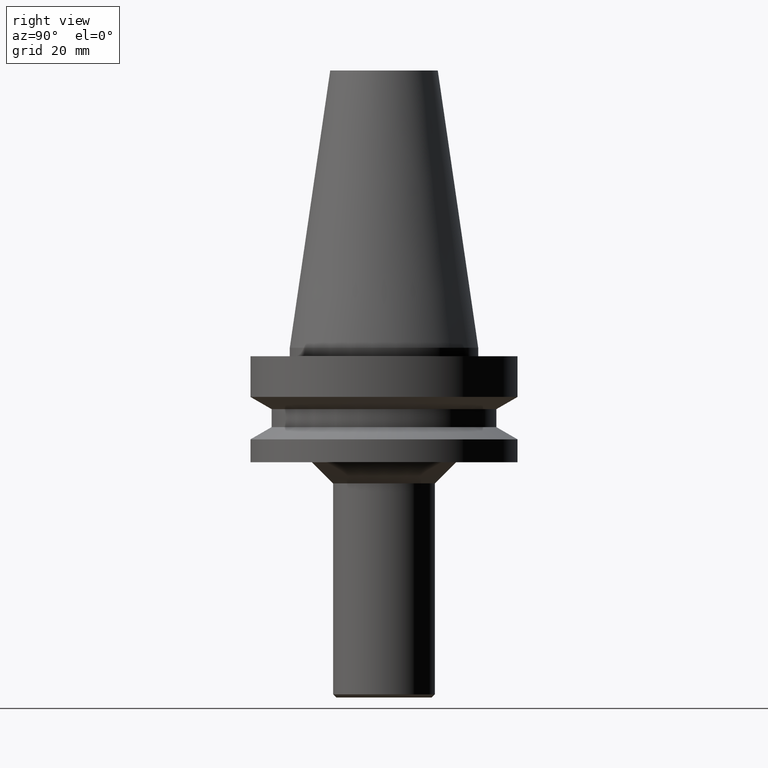
[diagram: clean part render]
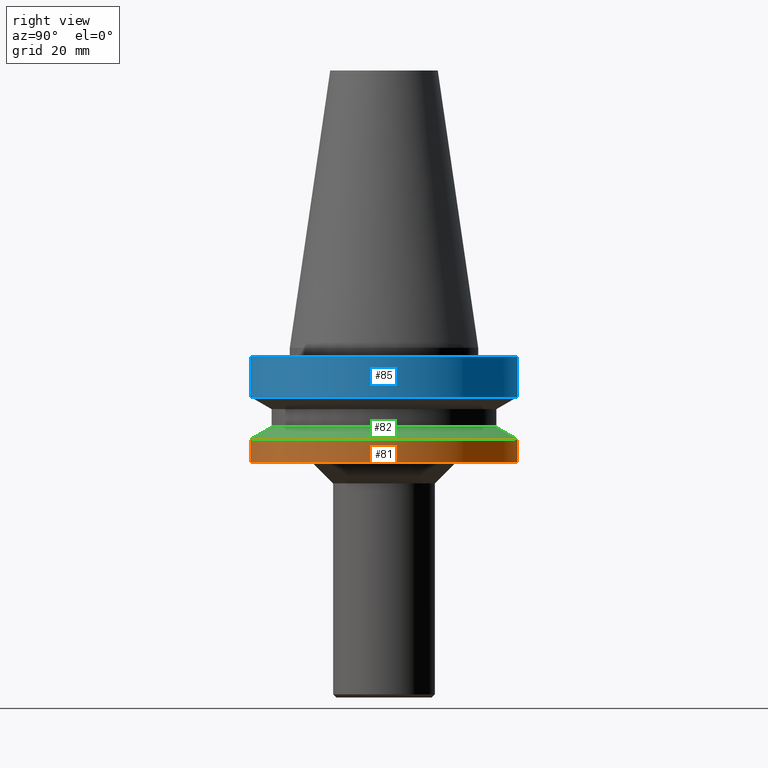
[diagram: same view with three faces highlighted in distinct colors, each labeled with its STEP entity id]
A machine part, right view with three faces highlighted in distinct colors.
Their STEP definitions:

[orange] entity #81 — the highlighted cylindrical surface (bore or boss wall) has radius 31.5 mm, axis along (0, 0, -1).
#81=ADVANCED_FACE('',(#107,#108),#109,.T.);
#107=FACE_BOUND('',#147,.T.);
#108=FACE_BOUND('',#148,.T.);
#109=CYLINDRICAL_SURFACE('',#149,31.5000000000001);
#147=EDGE_LOOP('',(#199));
#148=EDGE_LOOP('',(#200));
#149=AXIS2_PLACEMENT_3D('',#201,#202,#203);
#199=ORIENTED_EDGE('',*,*,#245,.F.);
#200=ORIENTED_EDGE('',*,*,#244,.T.);
#201=CARTESIAN_POINT('',(1.48794584970018E-015,2.97589169940036E-015,-24.2999998160473));
#202=DIRECTION('',(6.12323399573677E-017,1.22464679914735E-016,-1.0));
#203=DIRECTION('',(-1.23259516440783E-032,1.0,1.22464679914735E-016));
#244=EDGE_CURVE('',#263,#263,#264,.T.);
#245=EDGE_CURVE('',#265,#265,#266,.T.);
#263=VERTEX_POINT('',#289);
#264=CIRCLE('',#290,31.5000000000001);
#265=VERTEX_POINT('',#291);
#266=CIRCLE('',#292,31.5000000000001);
#289=CARTESIAN_POINT('',(1.65327317884893E-015,31.5000000000001,-27.0));
#290=AXIS2_PLACEMENT_3D('',#321,#322,#323);
#291=CARTESIAN_POINT('',(1.32261852055143E-015,31.5000000000001,-21.5999996320946));
#292=AXIS2_PLACEMENT_3D('',#324,#325,#326);
#321=CARTESIAN_POINT('',(1.65327317884893E-015,3.30654635769785E-015,-27.0));
#322=DIRECTION('',(-6.12323399573677E-017,-1.22464679914735E-016,1.0));
#323=DIRECTION('',(-1.23259516440783E-032,1.0,1.22464679914735E-016));
#324=CARTESIAN_POINT('',(1.32261852055143E-015,2.64523704110286E-015,-21.5999996320946));
#325=DIRECTION('',(-6.12323399573677E-017,-1.22464679914735E-016,1.0));
#326=DIRECTION('',(-1.23259516440783E-032,1.0,1.22464679914735E-016));

[blue] entity #85 — the highlighted cylindrical surface (bore or boss wall) has radius 31.5 mm, axis along (0, 0, -1).
#85=ADVANCED_FACE('',(#119,#120),#121,.T.);
#119=FACE_BOUND('',#159,.T.);
#120=FACE_BOUND('',#160,.T.);
#121=CYLINDRICAL_SURFACE('',#161,31.5000000000001);
#159=EDGE_LOOP('',(#219));
#160=EDGE_LOOP('',(#220));
#161=AXIS2_PLACEMENT_3D('',#221,#222,#223);
#219=ORIENTED_EDGE('',*,*,#238,.F.);
#220=ORIENTED_EDGE('',*,*,#248,.T.);
#221=CARTESIAN_POINT('',(4.16379922973954E-016,8.32759845947909E-016,-6.8000001839527));
#222=DIRECTION('',(6.12323399573677E-017,1.22464679914735E-016,-1.0));
#223=DIRECTION('',(-1.23259516440783E-032,1.0,1.22464679914735E-016));
#238=EDGE_CURVE('',#251,#251,#252,.T.);
#248=EDGE_CURVE('',#271,#271,#272,.T.);
#251=VERTEX_POINT('',#277);
#252=CIRCLE('',#278,31.5000000000001);
#271=VERTEX_POINT('',#297);
#272=CIRCLE('',#298,31.5000000000001);
#277=CARTESIAN_POINT('',(1.22464679914735E-016,31.5000000000001,-2.0));
#278=AXIS2_PLACEMENT_3D('',#303,#304,#305);
#297=CARTESIAN_POINT('',(7.10295166033173E-016,31.5000000000001,-11.6000003679054));
#298=AXIS2_PLACEMENT_3D('',#333,#334,#335);
#303=CARTESIAN_POINT('',(1.22464679914735E-016,2.44929359829471E-016,-2.0));
#304=DIRECTION('',(-6.12323399573677E-017,-1.22464679914735E-016,1.0));
#305=DIRECTION('',(-1.23259516440783E-032,1.0,1.22464679914735E-016));
#333=CARTESIAN_POINT('',(7.10295166033173E-016,1.42059033206635E-015,-11.6000003679054));
#334=DIRECTION('',(-6.12323399573677E-017,-1.22464679914735E-016,1.0));
#335=DIRECTION('',(-1.23259516440783E-032,1.0,1.22464679914735E-016));

[green] entity #82 — the highlighted conical surface has half-angle 60 deg.
#82=ADVANCED_FACE('',(#110,#111),#112,.T.);
#110=FACE_BOUND('',#150,.T.);
#111=FACE_BOUND('',#151,.T.);
#112=CONICAL_SURFACE('',#152,29.0000000000001,1.04719757802264);
#150=EDGE_LOOP('',(#204));
#151=EDGE_LOOP('',(#205));
#152=AXIS2_PLACEMENT_3D('',#206,#207,#208);
#204=ORIENTED_EDGE('',*,*,#246,.F.);
#205=ORIENTED_EDGE('',*,*,#245,.T.);
#206=CARTESIAN_POINT('',(1.23423725613309E-015,2.46847451226619E-015,-20.1566240485407));
#207=DIRECTION('',(6.12323399573677E-017,1.22464679914735E-016,-1.0));
#208=DIRECTION('',(-1.23259516440783E-032,1.0,1.22464679914735E-016));
#245=EDGE_CURVE('',#265,#265,#266,.T.);
#246=EDGE_CURVE('',#267,#267,#268,.T.);
#265=VERTEX_POINT('',#291);
#266=CIRCLE('',#292,31.5000000000001);
#267=VERTEX_POINT('',#293);
#268=CIRCLE('',#294,26.5000000000001);
#291=CARTESIAN_POINT('',(1.32261852055143E-015,31.5000000000001,-21.5999996320946));
#292=AXIS2_PLACEMENT_3D('',#324,#325,#326);
#293=CARTESIAN_POINT('',(1.14585599171476E-015,26.5000000000001,-18.7132484649867));
#294=AXIS2_PLACEMENT_3D('',#327,#328,#329);
#324=CARTESIAN_POINT('',(1.32261852055143E-015,2.64523704110286E-015,-21.5999996320946));
#325=DIRECTION('',(-6.12323399573677E-017,-1.22464679914735E-016,1.0));
#326=DIRECTION('',(-1.23259516440783E-032,1.0,1.22464679914735E-016));
#327=CARTESIAN_POINT('',(1.14585599171476E-015,2.29171198342951E-015,-18.7132484649868));
#328=DIRECTION('',(-6.12323399573677E-017,-1.22464679914735E-016,1.0));
#329=DIRECTION('',(-1.23259516440783E-032,1.0,1.22464679914735E-016));